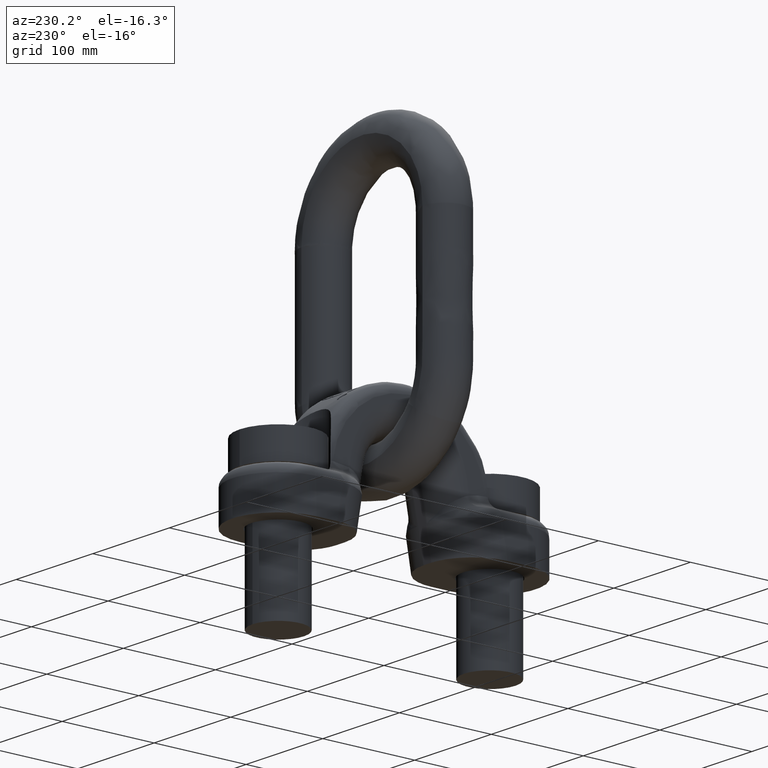
[diagram: clean part render]
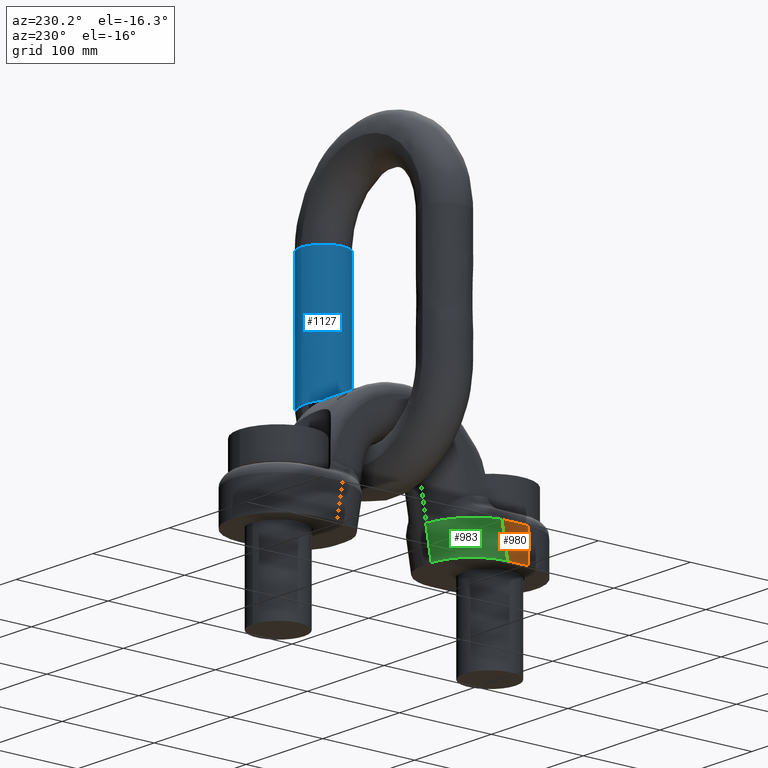
[diagram: same view with three faces highlighted in distinct colors, each labeled with its STEP entity id]
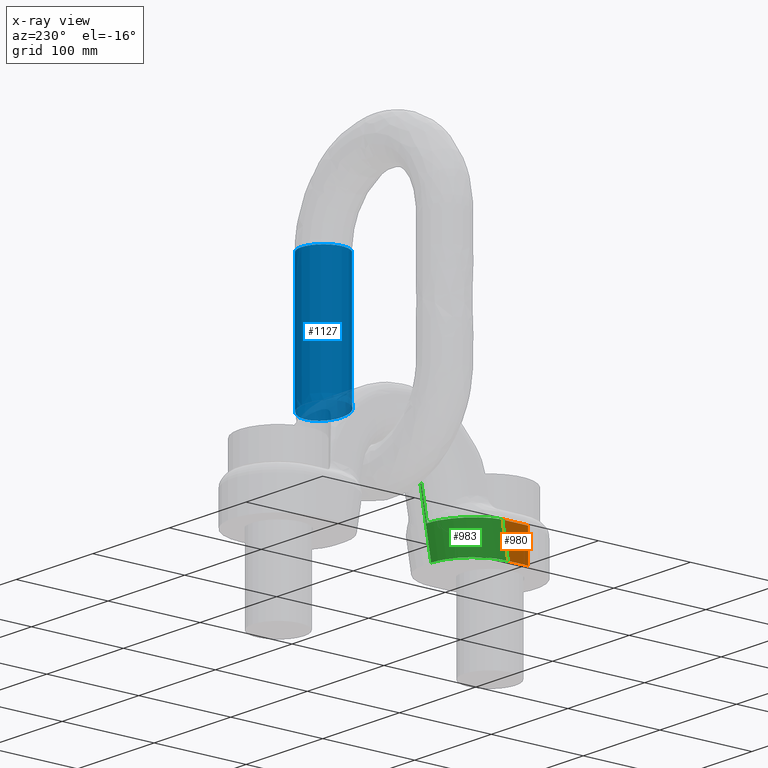
[diagram: x-ray of the same camera — body ghosted, the three highlighted faces saturated]
A machine part, auxiliary view with three faces highlighted in distinct colors.
The next image is the same camera in x-ray (body ghosted, the three faces saturated) — at least one of them is partly hidden behind the body in this view.
Their STEP definitions:

[orange] entity #980 — the highlighted planar face has unit normal (1, 0, 0).
#744=PLANE('',#3547);
#836=FACE_OUTER_BOUND('',#1234,.T.);
#980=ADVANCED_FACE('',(#836),#744,.F.);
#1234=EDGE_LOOP('',(#2069,#2070,#2071,#2072));
#1655=LINE('',#5011,#1773);
#1656=LINE('',#5014,#1774);
#1657=LINE('',#5016,#1775);
#1658=LINE('',#5018,#1776);
#1773=VECTOR('',#3800,1.);
#1774=VECTOR('',#3801,1.);
#1775=VECTOR('',#3802,1.);
#1776=VECTOR('',#3803,1.);
#2069=ORIENTED_EDGE('',*,*,#3133,.F.);
#2070=ORIENTED_EDGE('',*,*,#3134,.T.);
#2071=ORIENTED_EDGE('',*,*,#3135,.T.);
#2072=ORIENTED_EDGE('',*,*,#3136,.T.);
#2859=VERTEX_POINT('',#5012);
#2860=VERTEX_POINT('',#5013);
#2861=VERTEX_POINT('',#5015);
#2862=VERTEX_POINT('',#5017);
#3133=EDGE_CURVE('',#2859,#2860,#1655,.T.);
#3134=EDGE_CURVE('',#2859,#2861,#1656,.T.);
#3135=EDGE_CURVE('',#2861,#2862,#1657,.T.);
#3136=EDGE_CURVE('',#2862,#2860,#1658,.T.);
#3547=AXIS2_PLACEMENT_3D('',#5019,#3804,#3805);
#3800=DIRECTION('',(0.,0.,-1.));
#3801=DIRECTION('',(0.,1.,-4.02254719067086E-16));
#3802=DIRECTION('',(0.,-0.17364817766693,-0.984807753012208));
#3803=DIRECTION('',(0.,-1.,0.));
#3804=DIRECTION('',(1.,0.,0.));
#3805=DIRECTION('',(0.,0.,-1.));
#5011=CARTESIAN_POINT('',(-50.,-115.,336.));
#5012=CARTESIAN_POINT('',(-50.,-115.,35.));
#5013=CARTESIAN_POINT('',(-50.,-115.,0.));
#5014=CARTESIAN_POINT('',(-50.,115.,34.9999999999999));
#5015=CARTESIAN_POINT('',(-50.,-86.657730080457,35.));
#5016=CARTESIAN_POINT('',(-50.,-91.4513257559441,7.81416799501182));
#5017=CARTESIAN_POINT('',(-50.,-92.8291744052532,0.));
#5018=CARTESIAN_POINT('',(-50.,115.,0.));
#5019=CARTESIAN_POINT('',(-50.,115.,336.));

[blue] entity #1127 — the highlighted face is a freeform B-spline surface patch.
#31=(
BOUNDED_CURVE()
B_SPLINE_CURVE(4,(#6831,#6832,#6833,#6834,#6835,#6836,#6837,#6838,#6839,
#6840,#6841,#6842,#6843,#6844),.UNSPECIFIED.,.T.,.F.)
B_SPLINE_CURVE_WITH_KNOTS((2,3,3,3,3,3,2),(-0.25,0.,0.25,0.5,0.75,1.,1.25),
 .UNSPECIFIED.)
CURVE()
GEOMETRIC_REPRESENTATION_ITEM()
RATIONAL_B_SPLINE_CURVE((1.0166117137858,1.0166117137858,0.958470715535492,
1.0166117137858,1.0166117137858,0.958470715535492,1.0166117137858,1.0166117137858,
0.958470715535492,1.0166117137858,1.0166117137858,0.958470715535492,1.0166117137858,
1.0166117137858))
REPRESENTATION_ITEM('')
);
#32=(
BOUNDED_CURVE()
B_SPLINE_CURVE(4,(#6846,#6847,#6848,#6849,#6850,#6851,#6852,#6853,#6854,
#6855,#6856,#6857,#6858,#6859),.UNSPECIFIED.,.T.,.F.)
B_SPLINE_CURVE_WITH_KNOTS((2,3,3,3,3,3,2),(-0.25,0.,0.25,0.5,0.75,1.,1.25),
 .UNSPECIFIED.)
CURVE()
GEOMETRIC_REPRESENTATION_ITEM()
RATIONAL_B_SPLINE_CURVE((1.0166117137858,1.0166117137858,0.958470715535492,
1.0166117137858,1.0166117137858,0.958470715535492,1.0166117137858,1.0166117137858,
0.958470715535492,1.0166117137858,1.0166117137858,0.958470715535492,1.0166117137858,
1.0166117137858))
REPRESENTATION_ITEM('')
);
#819=(
BOUNDED_SURFACE()
B_SPLINE_SURFACE(4,3,((#6861,#6862,#6863,#6864,#6865,#6866,#6867,#6868,
#6869,#6870,#6871,#6872),(#6873,#6874,#6875,#6876,#6877,#6878,#6879,#6880,
#6881,#6882,#6883,#6884),(#6885,#6886,#6887,#6888,#6889,#6890,#6891,#6892,
#6893,#6894,#6895,#6896),(#6897,#6898,#6899,#6900,#6901,#6902,#6903,#6904,
#6905,#6906,#6907,#6908),(#6909,#6910,#6911,#6912,#6913,#6914,#6915,#6916,
#6917,#6918,#6919,#6920),(#6921,#6922,#6923,#6924,#6925,#6926,#6927,#6928,
#6929,#6930,#6931,#6932),(#6933,#6934,#6935,#6936,#6937,#6938,#6939,#6940,
#6941,#6942,#6943,#6944),(#6945,#6946,#6947,#6948,#6949,#6950,#6951,#6952,
#6953,#6954,#6955,#6956),(#6957,#6958,#6959,#6960,#6961,#6962,#6963,#6964,
#6965,#6966,#6967,#6968),(#6969,#6970,#6971,#6972,#6973,#6974,#6975,#6976,
#6977,#6978,#6979,#6980),(#6981,#6982,#6983,#6984,#6985,#6986,#6987,#6988,
#6989,#6990,#6991,#6992),(#6993,#6994,#6995,#6996,#6997,#6998,#6999,#7000,
#7001,#7002,#7003,#7004),(#7005,#7006,#7007,#7008,#7009,#7010,#7011,#7012,
#7013,#7014,#7015,#7016),(#7017,#7018,#7019,#7020,#7021,#7022,#7023,#7024,
#7025,#7026,#7027,#7028)),.UNSPECIFIED.,.T.,.F.,.F.)
B_SPLINE_SURFACE_WITH_KNOTS((2,3,3,3,3,3,2),(4,1,1,1,1,1,1,1,1,4),(-0.25,
0.,0.25,0.5,0.75,1.,1.25),(0.,0.0244268197372946,0.0714555752652119,0.118387328787127,
0.164040978038037,0.506508612347087,0.838757226340167,0.942200062927929,
0.984340858591499,1.),.UNSPECIFIED.)
GEOMETRIC_REPRESENTATION_ITEM()
RATIONAL_B_SPLINE_SURFACE(((1.0166117137858,1.0166117137858,1.0166117137858,
1.0166117137858,1.0166117137858,1.0166117137858,1.0166117137858,1.0166117137858,
1.0166117137858,1.0166117137858,1.0166117137858,1.0166117137858),(1.0166117137858,
1.0166117137858,1.0166117137858,1.0166117137858,1.0166117137858,1.0166117137858,
1.0166117137858,1.0166117137858,1.0166117137858,1.0166117137858,1.0166117137858,
1.0166117137858),(0.958470715535492,0.958470715535492,0.958470715535492,
0.958470715535492,0.958470715535493,0.958470715535491,0.958470715535494,
0.958470715535491,0.958470715535492,0.958470715535492,0.958470715535492,
0.958470715535492),(1.0166117137858,1.0166117137858,1.0166117137858,1.0166117137858,
1.0166117137858,1.0166117137858,1.0166117137858,1.0166117137858,1.0166117137858,
1.0166117137858,1.0166117137858,1.0166117137858),(1.0166117137858,1.0166117137858,
1.0166117137858,1.0166117137858,1.0166117137858,1.0166117137858,1.0166117137858,
1.0166117137858,1.0166117137858,1.0166117137858,1.0166117137858,1.0166117137858),
(0.958470715535492,0.958470715535492,0.958470715535492,0.958470715535492,
0.958470715535493,0.958470715535491,0.958470715535494,0.958470715535491,
0.958470715535492,0.958470715535492,0.958470715535492,0.958470715535492),
(1.0166117137858,1.0166117137858,1.0166117137858,1.0166117137858,1.0166117137858,
1.0166117137858,1.0166117137858,1.0166117137858,1.0166117137858,1.0166117137858,
1.0166117137858,1.0166117137858),(1.0166117137858,1.0166117137858,1.0166117137858,
1.0166117137858,1.0166117137858,1.0166117137858,1.0166117137858,1.0166117137858,
1.0166117137858,1.0166117137858,1.0166117137858,1.0166117137858),(0.958470715535492,
0.958470715535492,0.958470715535492,0.958470715535492,0.958470715535493,
0.958470715535491,0.958470715535494,0.958470715535491,0.958470715535492,
0.958470715535492,0.958470715535492,0.958470715535492),(1.0166117137858,
1.0166117137858,1.0166117137858,1.0166117137858,1.0166117137858,1.0166117137858,
1.0166117137858,1.0166117137858,1.0166117137858,1.0166117137858,1.0166117137858,
1.0166117137858),(1.0166117137858,1.0166117137858,1.0166117137858,1.0166117137858,
1.0166117137858,1.0166117137858,1.0166117137858,1.0166117137858,1.0166117137858,
1.0166117137858,1.0166117137858,1.0166117137858),(0.958470715535492,0.958470715535492,
0.958470715535492,0.958470715535492,0.958470715535493,0.958470715535491,
0.958470715535494,0.958470715535491,0.958470715535492,0.958470715535492,
0.958470715535492,0.958470715535492),(1.0166117137858,1.0166117137858,1.0166117137858,
1.0166117137858,1.0166117137858,1.0166117137858,1.0166117137858,1.0166117137858,
1.0166117137858,1.0166117137858,1.0166117137858,1.0166117137858),(1.0166117137858,
1.0166117137858,1.0166117137858,1.0166117137858,1.0166117137858,1.0166117137858,
1.0166117137858,1.0166117137858,1.0166117137858,1.0166117137858,1.0166117137858,
1.0166117137858)))
REPRESENTATION_ITEM('')
SURFACE()
);
#1127=ADVANCED_FACE('',(#1205,#1206),#819,.F.);
#1205=FACE_BOUND('',#1394,.T.);
#1206=FACE_BOUND('',#1395,.T.);
#1394=EDGE_LOOP('',(#2731));
#1395=EDGE_LOOP('',(#2732));
#2731=ORIENTED_EDGE('',*,*,#3412,.T.);
#2732=ORIENTED_EDGE('',*,*,#3413,.F.);
#3008=VERTEX_POINT('',#6845);
#3009=VERTEX_POINT('',#6860);
#3412=EDGE_CURVE('',#3008,#3008,#31,.T.);
#3413=EDGE_CURVE('',#3009,#3009,#32,.T.);
#6831=CARTESIAN_POINT('',(86.9712002915969,24.,141.527378218331));
#6832=CARTESIAN_POINT('',(70.1003599779186,24.,143.37095792877));
#6833=CARTESIAN_POINT('',(58.8945190329427,19.7573593128807,144.59548857576));
#6834=CARTESIAN_POINT('',(54.6768089545232,8.48528137423857,145.05638350337));
#6835=CARTESIAN_POINT('',(54.6768089545231,-8.48528137423857,145.05638350337));
#6836=CARTESIAN_POINT('',(58.8945190329428,-19.7573593128807,144.59548857576));
#6837=CARTESIAN_POINT('',(70.1003599779186,-24.,143.37095792877));
#6838=CARTESIAN_POINT('',(86.971200291597,-24.,141.527378218331));
#6839=CARTESIAN_POINT('',(98.1770412365729,-19.7573593128807,140.302847571342));
#6840=CARTESIAN_POINT('',(102.394751314992,-8.48528137423857,139.841952643732));
#6841=CARTESIAN_POINT('',(102.394751314992,8.48528137423857,139.841952643732));
#6842=CARTESIAN_POINT('',(98.1770412365728,19.7573593128807,140.302847571342));
#6843=CARTESIAN_POINT('',(86.9712002915969,24.,141.527378218331));
#6844=CARTESIAN_POINT('',(70.1003599779186,24.,143.37095792877));
#6845=CARTESIAN_POINT('',(78.5357801347578,24.,142.449168073551));
#6846=CARTESIAN_POINT('',(87.4859886639094,24.,280.201193927326));
#6847=CARTESIAN_POINT('',(70.5152887140247,24.,280.220234272958));
#6848=CARTESIAN_POINT('',(59.2431196443468,19.7573593128807,280.232881128758));
#6849=CARTESIAN_POINT('',(55.0004446568757,8.48528137423857,280.237641215166));
#6850=CARTESIAN_POINT('',(55.0004446568757,-8.48528137423857,280.237641215166));
#6851=CARTESIAN_POINT('',(59.2431196443468,-19.7573593128807,280.232881128758));
#6852=CARTESIAN_POINT('',(70.5152887140247,-24.,280.220234272958));
#6853=CARTESIAN_POINT('',(87.4859886639094,-24.,280.201193927326));
#6854=CARTESIAN_POINT('',(98.7581577335872,-19.7573593128807,280.188547071525));
#6855=CARTESIAN_POINT('',(103.000832721058,-8.48528137423857,280.183786985117));
#6856=CARTESIAN_POINT('',(103.000832721058,8.48528137423857,280.183786985117));
#6857=CARTESIAN_POINT('',(98.7581577335871,19.7573593128807,280.188547071525));
#6858=CARTESIAN_POINT('',(87.4859886639094,24.,280.201193927326));
#6859=CARTESIAN_POINT('',(70.5152887140247,24.,280.220234272958));
#6860=CARTESIAN_POINT('',(79.000638688967,24.,280.210714100142));
#6861=CARTESIAN_POINT('',(70.1003599779186,24.,143.37095792877));
#6862=CARTESIAN_POINT('',(70.1904020684299,24.,144.206069630123));
#6863=CARTESIAN_POINT('',(70.4104448462119,24.,146.667330933588));
#6864=CARTESIAN_POINT('',(70.5535153820275,24.,150.82355219001));
#6865=CARTESIAN_POINT('',(70.5088022483345,24.,156.845315987955));
#6866=CARTESIAN_POINT('',(70.518488828378,24.,175.597346133407));
#6867=CARTESIAN_POINT('',(70.512271616963,24.,209.599998816559));
#6868=CARTESIAN_POINT('',(70.515383826842,24.,246.379359721615));
#6869=CARTESIAN_POINT('',(70.5147032662795,24.,269.287693754498));
#6870=CARTESIAN_POINT('',(70.5141597674864,24.,276.816212595018));
#6871=CARTESIAN_POINT('',(70.516235074932,24.,279.520617311917));
#6872=CARTESIAN_POINT('',(70.5152887140247,24.,280.220234272958));
#6873=CARTESIAN_POINT('',(86.9712002915969,24.,141.527378218331));
#6874=CARTESIAN_POINT('',(87.08291253803,24.,142.579430630827));
#6875=CARTESIAN_POINT('',(87.3559123415293,24.,145.698895172957));
#6876=CARTESIAN_POINT('',(87.5334152277091,24.,151.082956217885));
#6877=CARTESIAN_POINT('',(87.4779411202748,24.,156.814391754667));
#6878=CARTESIAN_POINT('',(87.4899589400356,24.,175.620202177271));
#6879=CARTESIAN_POINT('',(87.4822454512864,23.9999999999999,209.578511112011));
#6880=CARTESIAN_POINT('',(87.4861066672363,24.,246.393388431515));
#6881=CARTESIAN_POINT('',(87.4852623182379,24.,269.274736590022));
#6882=CARTESIAN_POINT('',(87.4845880172426,24.,276.843304325857));
#6883=CARTESIAN_POINT('',(87.4871627826164,24.,279.465291743857));
#6884=CARTESIAN_POINT('',(87.4859886639094,24.,280.201193927326));
#6885=CARTESIAN_POINT('',(98.1770412365728,19.7573593128807,140.302847571342));
#6886=CARTESIAN_POINT('',(98.3031470944679,19.7573593128807,141.49899494641));
#6887=CARTESIAN_POINT('',(98.6113216726717,19.7573593128807,145.055647006458));
#6888=CARTESIAN_POINT('',(98.8116949929478,19.7573593128807,151.255255891334));
#6889=CARTESIAN_POINT('',(98.7490733008097,19.7573593128807,156.793851459511));
#6890=CARTESIAN_POINT('',(98.7626395616089,19.7573593128807,175.635383471588));
#6891=CARTESIAN_POINT('',(98.7539322251597,19.7573593128807,209.564238687226));
#6892=CARTESIAN_POINT('',(98.7582909411016,19.7573593128807,246.402706490892));
#6893=CARTESIAN_POINT('',(98.7573378016018,19.7573593128807,269.266130265648));
#6894=CARTESIAN_POINT('',(98.7565766200105,19.7573593128807,276.861299020907));
#6895=CARTESIAN_POINT('',(98.7594831321136,19.7573593128807,279.428543751205));
#6896=CARTESIAN_POINT('',(98.7581577335871,19.7573593128807,280.188547071525));
#6897=CARTESIAN_POINT('',(102.394751314992,8.48528137423857,139.841952643732));
#6898=CARTESIAN_POINT('',(102.526274711868,8.48528137423857,141.092335196586));
#6899=CARTESIAN_POINT('',(102.847688546501,8.48528137423857,144.8135380663));
#6900=CARTESIAN_POINT('',(103.056669954368,8.48528137423859,151.320106898303));
#6901=CARTESIAN_POINT('',(102.991358018795,8.48528137423856,156.78612040119));
#6902=CARTESIAN_POINT('',(103.005507089523,8.48528137423861,175.641097482554));
#6903=CARTESIAN_POINT('',(102.996425683741,8.48528137423848,209.55886676109));
#6904=CARTESIAN_POINT('',(103.0009716512,8.48528137423863,246.406213668367));
#6905=CARTESIAN_POINT('',(102.999977564592,8.48528137423853,269.26289097453));
#6906=CARTESIAN_POINT('',(102.999183682449,8.48528137423859,276.868071953617));
#6907=CARTESIAN_POINT('',(103.002215059035,8.48528137423857,279.41471235919));
#6908=CARTESIAN_POINT('',(103.000832721058,8.48528137423857,280.183786985117));
#6909=CARTESIAN_POINT('',(102.394751314992,-8.48528137423857,139.841952643732));
#6910=CARTESIAN_POINT('',(102.526274711868,-8.48528137423857,141.092335196586));
#6911=CARTESIAN_POINT('',(102.847688546501,-8.48528137423857,144.8135380663));
#6912=CARTESIAN_POINT('',(103.056669954368,-8.48528137423857,151.320106898303));
#6913=CARTESIAN_POINT('',(102.991358018795,-8.48528137423857,156.78612040119));
#6914=CARTESIAN_POINT('',(103.005507089523,-8.48528137423857,175.641097482554));
#6915=CARTESIAN_POINT('',(102.996425683741,-8.48528137423857,209.55886676109));
#6916=CARTESIAN_POINT('',(103.0009716512,-8.48528137423858,246.406213668367));
#6917=CARTESIAN_POINT('',(102.999977564592,-8.48528137423858,269.26289097453));
#6918=CARTESIAN_POINT('',(102.999183682449,-8.48528137423856,276.868071953617));
#6919=CARTESIAN_POINT('',(103.002215059035,-8.48528137423857,279.41471235919));
#6920=CARTESIAN_POINT('',(103.000832721058,-8.48528137423857,280.183786985117));
#6921=CARTESIAN_POINT('',(98.1770412365728,-19.7573593128807,140.302847571342));
#6922=CARTESIAN_POINT('',(98.3031470944679,-19.7573593128807,141.49899494641));
#6923=CARTESIAN_POINT('',(98.6113216726717,-19.7573593128807,145.055647006458));
#6924=CARTESIAN_POINT('',(98.8116949929478,-19.7573593128807,151.255255891334));
#6925=CARTESIAN_POINT('',(98.7490733008098,-19.7573593128807,156.793851459511));
#6926=CARTESIAN_POINT('',(98.7626395616088,-19.7573593128807,175.635383471588));
#6927=CARTESIAN_POINT('',(98.7539322251596,-19.7573593128807,209.564238687226));
#6928=CARTESIAN_POINT('',(98.7582909411016,-19.7573593128807,246.402706490892));
#6929=CARTESIAN_POINT('',(98.7573378016018,-19.7573593128807,269.266130265648));
#6930=CARTESIAN_POINT('',(98.7565766200105,-19.7573593128807,276.861299020907));
#6931=CARTESIAN_POINT('',(98.7594831321137,-19.7573593128807,279.428543751205));
#6932=CARTESIAN_POINT('',(98.7581577335872,-19.7573593128807,280.188547071525));
#6933=CARTESIAN_POINT('',(86.971200291597,-24.,141.527378218331));
#6934=CARTESIAN_POINT('',(87.08291253803,-24.,142.579430630827));
#6935=CARTESIAN_POINT('',(87.3559123415294,-24.,145.698895172957));
#6936=CARTESIAN_POINT('',(87.5334152277091,-24.,151.082956217885));
#6937=CARTESIAN_POINT('',(87.4779411202748,-24.,156.814391754667));
#6938=CARTESIAN_POINT('',(87.4899589400357,-24.,175.620202177271));
#6939=CARTESIAN_POINT('',(87.4822454512862,-23.9999999999999,209.578511112011));
#6940=CARTESIAN_POINT('',(87.4861066672364,-24.,246.393388431515));
#6941=CARTESIAN_POINT('',(87.4852623182378,-24.,269.274736590022));
#6942=CARTESIAN_POINT('',(87.4845880172427,-24.,276.843304325857));
#6943=CARTESIAN_POINT('',(87.4871627826164,-24.,279.465291743857));
#6944=CARTESIAN_POINT('',(87.4859886639094,-24.,280.201193927326));
#6945=CARTESIAN_POINT('',(70.1003599779186,-24.,143.37095792877));
#6946=CARTESIAN_POINT('',(70.1904020684299,-24.,144.206069630123));
#6947=CARTESIAN_POINT('',(70.4104448462119,-24.,146.667330933588));
#6948=CARTESIAN_POINT('',(70.5535153820275,-24.,150.82355219001));
#6949=CARTESIAN_POINT('',(70.5088022483345,-24.,156.845315987955));
#6950=CARTESIAN_POINT('',(70.518488828378,-24.,175.597346133407));
#6951=CARTESIAN_POINT('',(70.5122716169629,-23.9999999999999,209.599998816559));
#6952=CARTESIAN_POINT('',(70.515383826842,-24.,246.379359721615));
#6953=CARTESIAN_POINT('',(70.5147032662795,-24.,269.287693754498));
#6954=CARTESIAN_POINT('',(70.5141597674864,-24.,276.816212595018));
#6955=CARTESIAN_POINT('',(70.516235074932,-24.,279.520617311917));
#6956=CARTESIAN_POINT('',(70.5152887140247,-24.,280.220234272958));
#6957=CARTESIAN_POINT('',(58.8945190329428,-19.7573593128807,144.59548857576));
#6958=CARTESIAN_POINT('',(58.970167511992,-19.7573593128807,145.28650531454));
#6959=CARTESIAN_POINT('',(59.1550355150697,-19.7573593128807,147.310579100087));
#6960=CARTESIAN_POINT('',(59.2752356167888,-19.7573593128807,150.651252516562));
#6961=CARTESIAN_POINT('',(59.2376700677992,-19.7573593128807,156.86585628311));
#6962=CARTESIAN_POINT('',(59.2458082068053,-19.7573593128807,175.582164839091));
#6963=CARTESIAN_POINT('',(59.240584843089,-19.7573593128807,209.614271241344));
#6964=CARTESIAN_POINT('',(59.2431995529773,-19.7573593128808,246.370041662238));
#6965=CARTESIAN_POINT('',(59.2426277829153,-19.7573593128807,269.296300078872));
#6966=CARTESIAN_POINT('',(59.2421711647189,-19.7573593128807,276.798217899967));
#6967=CARTESIAN_POINT('',(59.2439147254347,-19.7573593128807,279.557365304569));
#6968=CARTESIAN_POINT('',(59.2431196443468,-19.7573593128807,280.232881128758));
#6969=CARTESIAN_POINT('',(54.6768089545231,-8.48528137423857,145.05638350337));
#6970=CARTESIAN_POINT('',(54.747039894592,-8.48528137423857,145.693165064363));
#6971=CARTESIAN_POINT('',(54.9186686412403,-8.48528137423857,147.552688040245));
#6972=CARTESIAN_POINT('',(55.0302606553684,-8.48528137423859,150.586401509593));
#6973=CARTESIAN_POINT('',(54.9953853498142,-8.48528137423857,156.873587341432));
#6974=CARTESIAN_POINT('',(55.0029406788907,-8.48528137423861,175.576450828124));
#6975=CARTESIAN_POINT('',(54.9980913845084,-8.48528137423849,209.619643167481));
#6976=CARTESIAN_POINT('',(55.0005188428784,-8.48528137423862,246.366534484763));
#6977=CARTESIAN_POINT('',(54.9999880199259,-8.48528137423854,269.299539369991));
#6978=CARTESIAN_POINT('',(54.9995641022797,-8.48528137423859,276.791444967258));
#6979=CARTESIAN_POINT('',(55.0011827985137,-8.48528137423857,279.571196696584));
#6980=CARTESIAN_POINT('',(55.0004446568757,-8.48528137423857,280.237641215166));
#6981=CARTESIAN_POINT('',(54.6768089545232,8.48528137423857,145.05638350337));
#6982=CARTESIAN_POINT('',(54.747039894592,8.48528137423857,145.693165064363));
#6983=CARTESIAN_POINT('',(54.9186686412403,8.48528137423857,147.552688040245));
#6984=CARTESIAN_POINT('',(55.0302606553684,8.48528137423856,150.586401509593));
#6985=CARTESIAN_POINT('',(54.9953853498142,8.48528137423857,156.873587341432));
#6986=CARTESIAN_POINT('',(55.0029406788906,8.48528137423857,175.576450828124));
#6987=CARTESIAN_POINT('',(54.9980913845086,8.48528137423857,209.619643167481));
#6988=CARTESIAN_POINT('',(55.0005188428783,8.48528137423858,246.366534484763));
#6989=CARTESIAN_POINT('',(54.9999880199259,8.48528137423857,269.299539369991));
#6990=CARTESIAN_POINT('',(54.9995641022796,8.48528137423856,276.791444967258));
#6991=CARTESIAN_POINT('',(55.0011827985137,8.48528137423856,279.571196696584));
#6992=CARTESIAN_POINT('',(55.0004446568757,8.48528137423857,280.237641215166));
#6993=CARTESIAN_POINT('',(58.8945190329427,19.7573593128807,144.59548857576));
#6994=CARTESIAN_POINT('',(58.970167511992,19.7573593128807,145.28650531454));
#6995=CARTESIAN_POINT('',(59.1550355150697,19.7573593128807,147.310579100087));
#6996=CARTESIAN_POINT('',(59.2752356167889,19.7573593128807,150.651252516562));
#6997=CARTESIAN_POINT('',(59.2376700677992,19.7573593128807,156.86585628311));
#6998=CARTESIAN_POINT('',(59.2458082068054,19.7573593128807,175.582164839091));
#6999=CARTESIAN_POINT('',(59.2405848430888,19.7573593128807,209.614271241344));
#7000=CARTESIAN_POINT('',(59.2431995529774,19.7573593128807,246.370041662238));
#7001=CARTESIAN_POINT('',(59.2426277829152,19.7573593128807,269.296300078872));
#7002=CARTESIAN_POINT('',(59.2421711647189,19.7573593128807,276.798217899967));
#7003=CARTESIAN_POINT('',(59.2439147254347,19.7573593128807,279.557365304569));
#7004=CARTESIAN_POINT('',(59.2431196443468,19.7573593128807,280.232881128758));
#7005=CARTESIAN_POINT('',(70.1003599779186,24.,143.37095792877));
#7006=CARTESIAN_POINT('',(70.1904020684299,24.,144.206069630123));
#7007=CARTESIAN_POINT('',(70.4104448462119,24.,146.667330933588));
#7008=CARTESIAN_POINT('',(70.5535153820275,24.,150.82355219001));
#7009=CARTESIAN_POINT('',(70.5088022483345,24.,156.845315987955));
#7010=CARTESIAN_POINT('',(70.518488828378,24.,175.597346133407));
#7011=CARTESIAN_POINT('',(70.512271616963,24.,209.599998816559));
#7012=CARTESIAN_POINT('',(70.515383826842,24.,246.379359721615));
#7013=CARTESIAN_POINT('',(70.5147032662795,24.,269.287693754498));
#7014=CARTESIAN_POINT('',(70.5141597674864,24.,276.816212595018));
#7015=CARTESIAN_POINT('',(70.516235074932,24.,279.520617311917));
#7016=CARTESIAN_POINT('',(70.5152887140247,24.,280.220234272958));
#7017=CARTESIAN_POINT('',(86.9712002915969,24.,141.527378218331));
#7018=CARTESIAN_POINT('',(87.08291253803,24.,142.579430630827));
#7019=CARTESIAN_POINT('',(87.3559123415293,24.,145.698895172957));
#7020=CARTESIAN_POINT('',(87.5334152277091,24.,151.082956217885));
#7021=CARTESIAN_POINT('',(87.4779411202748,24.,156.814391754667));
#7022=CARTESIAN_POINT('',(87.4899589400356,24.,175.620202177271));
#7023=CARTESIAN_POINT('',(87.4822454512864,23.9999999999999,209.578511112011));
#7024=CARTESIAN_POINT('',(87.4861066672363,24.,246.393388431515));
#7025=CARTESIAN_POINT('',(87.4852623182379,24.,269.274736590022));
#7026=CARTESIAN_POINT('',(87.4845880172426,24.,276.843304325857));
#7027=CARTESIAN_POINT('',(87.4871627826164,24.,279.465291743857));
#7028=CARTESIAN_POINT('',(87.4859886639094,24.,280.201193927326));

[green] entity #983 — the highlighted cylindrical surface (partial cylindrical patch) has radius 45 mm, axis along (0, -0.1736, -0.9848).
#839=FACE_OUTER_BOUND('',#1237,.T.);
#983=ADVANCED_FACE('',(#839),#1143,.T.);
#1143=CYLINDRICAL_SURFACE('',#3558,45.);
#1237=EDGE_LOOP('',(#2083,#2084,#2085,#2086,#2087,#2088));
#1657=LINE('',#5016,#1775);
#1661=LINE('',#5038,#1779);
#1662=LINE('',#5039,#1780);
#1775=VECTOR('',#3802,1.);
#1779=VECTOR('',#3826,1.);
#1780=VECTOR('',#3827,1.);
#1941=ELLIPSE('',#3556,45.3746440348898,45.);
#1942=ELLIPSE('',#3557,45.6941975348585,45.);
#2083=ORIENTED_EDGE('',*,*,#3135,.F.);
#2084=ORIENTED_EDGE('',*,*,#3145,.T.);
#2085=ORIENTED_EDGE('',*,*,#3146,.T.);
#2086=ORIENTED_EDGE('',*,*,#3142,.T.);
#2087=ORIENTED_EDGE('',*,*,#3147,.F.);
#2088=ORIENTED_EDGE('',*,*,#3148,.F.);
#2861=VERTEX_POINT('',#5015);
#2862=VERTEX_POINT('',#5017);
#2867=VERTEX_POINT('',#5031);
#2868=VERTEX_POINT('',#5032);
#2869=VERTEX_POINT('',#5037);
#2870=VERTEX_POINT('',#5040);
#3135=EDGE_CURVE('',#2861,#2862,#1657,.T.);
#3142=EDGE_CURVE('',#2867,#2868,#3451,.T.);
#3145=EDGE_CURVE('',#2861,#2869,#1941,.T.);
#3146=EDGE_CURVE('',#2869,#2867,#1661,.T.);
#3147=EDGE_CURVE('',#2870,#2868,#1662,.T.);
#3148=EDGE_CURVE('',#2862,#2870,#1942,.T.);
#3451=CIRCLE('',#3552,45.);
#3552=AXIS2_PLACEMENT_3D('',#5030,#3816,#3817);
#3556=AXIS2_PLACEMENT_3D('',#5036,#3824,#3825);
#3557=AXIS2_PLACEMENT_3D('',#5041,#3828,#3829);
#3558=AXIS2_PLACEMENT_3D('',#5042,#3830,#3831);
#3802=DIRECTION('',(0.,-0.17364817766693,-0.984807753012208));
#3816=DIRECTION('',(0.,-0.17364817766693,-0.984807753012208));
#3817=DIRECTION('',(0.,0.984807753012208,-0.17364817766693));
#3824=DIRECTION('',(0.,-0.0459238452736048,-0.998944943645688));
#3825=DIRECTION('',(0.,-0.998944943645688,0.0459238452736048));
#3826=DIRECTION('',(0.,0.17364817766693,0.984807753012208));
#3827=DIRECTION('',(0.,0.17364817766693,0.984807753012208));
#3828=DIRECTION('',(0.,0.,-1.));
#3829=DIRECTION('',(0.,-1.,0.));
#3830=DIRECTION('',(0.,-0.17364817766693,-0.984807753012208));
#3831=DIRECTION('',(0.,0.984807753012208,-0.17364817766693));
#5015=CARTESIAN_POINT('',(-50.,-86.657730080457,35.));
#5016=CARTESIAN_POINT('',(-50.,-91.4513257559441,7.81416799501182));
#5017=CARTESIAN_POINT('',(-50.,-92.8291744052532,0.));
#5030=CARTESIAN_POINT('',(-5.,-79.7694279939889,74.0655023910213));
#5031=CARTESIAN_POINT('',(-6.28571428571428,-35.4711711071055,66.2545245035092));
#5032=CARTESIAN_POINT('',(-5.00000000000003,-35.4530791084395,66.2513343960095));
#5036=CARTESIAN_POINT('',(-5.00000000000002,-86.657730080457,35.));
#5037=CARTESIAN_POINT('',(-6.28571428571426,-41.3494633522309,32.9170725633301));
#5038=CARTESIAN_POINT('',(-6.28571428571426,-35.4711711071055,66.2545245035092));
#5039=CARTESIAN_POINT('',(-5.00000000000002,-35.4530791084395,66.2513343960095));
#5040=CARTESIAN_POINT('',(-5.00000000000002,-47.1349768703947,0.));
#5041=CARTESIAN_POINT('',(-5.00000000000002,-92.8291744052532,0.));
#5042=CARTESIAN_POINT('',(-5.00000000000002,-79.7694279939889,74.0655023910213));